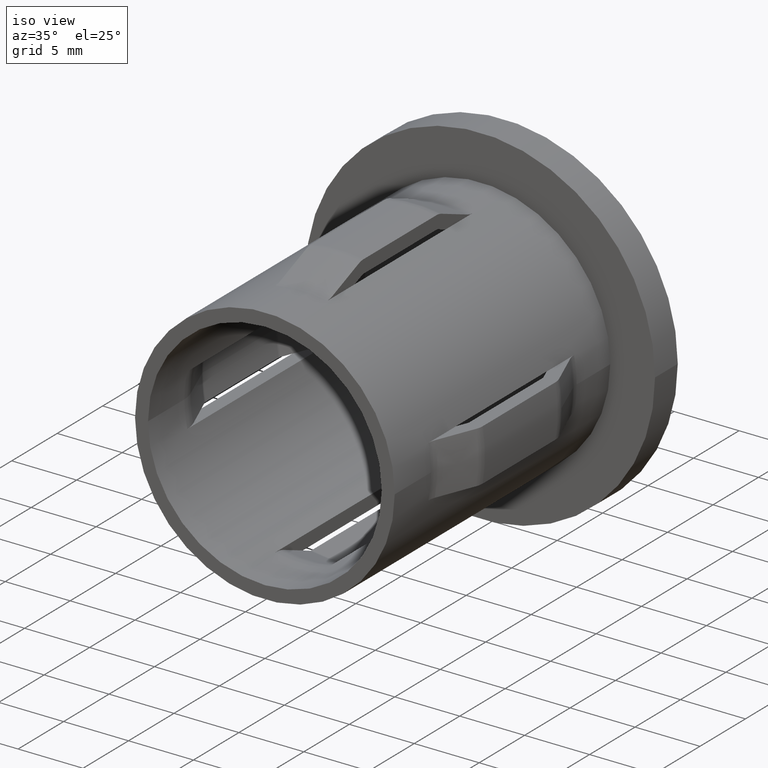
[diagram: clean part render]
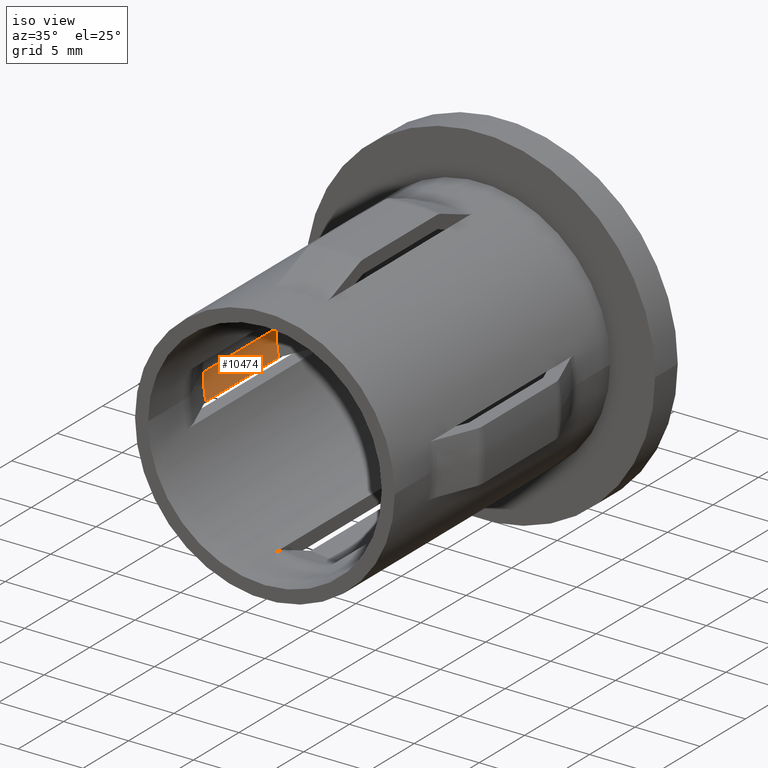
[diagram: same view with one face highlighted and labeled with its STEP entity id]
A machine part, iso view. The second image highlights one B-rep face of the part: STEP entity #10474.
In plain terms, the highlighted cylindrical surface (partial cylindrical patch) has radius 10.35 mm, axis along (0, 1, -0).
Its self-contained STEP definition (entity closure, byte-faithful):
#170 = VECTOR ( 'NONE', #8112, 1000.000000000000000 ) ;
#199 = DIRECTION ( 'NONE',  ( -1.000000000000000000, 0.000000000000000000, 0.000000000000000000 ) ) ;
#720 = CIRCLE ( 'NONE', #8022, 10.35000000000000142 ) ;
#986 = VERTEX_POINT ( 'NONE', #5372 ) ;
#1232 = LINE ( 'NONE', #10228, #170 ) ;
#1606 = LINE ( 'NONE', #1672, #6180 ) ;
#1672 = CARTESIAN_POINT ( 'NONE',  ( -10.15492491355795401, 26.19999999999999929, -2.000000000000000000 ) ) ;
#1683 = DIRECTION ( 'NONE',  ( 7.347880794884120229E-17, 1.000000000000000000, -0.000000000000000000 ) ) ;
#3651 = DIRECTION ( 'NONE',  ( 7.347880794884120229E-17, 1.000000000000000000, -0.000000000000000000 ) ) ;
#3856 = CARTESIAN_POINT ( 'NONE',  ( -9.699202649247035646E-16, 7.999999999999996447, 0.000000000000000000 ) ) ;
#4249 = VERTEX_POINT ( 'NONE', #7676 ) ;
#5085 = DIRECTION ( 'NONE',  ( -1.000000000000000000, 0.000000000000000000, 0.000000000000000000 ) ) ;
#5109 = EDGE_LOOP ( 'NONE', ( #8659, #10378, #9695, #10079 ) ) ;
#5372 = CARTESIAN_POINT ( 'NONE',  ( -10.35000000000000497, 7.999999999999996447, 0.000000000000000000 ) ) ;
#5814 = CARTESIAN_POINT ( 'NONE',  ( -3.820898013339737983E-16, 16.00000000000000000, 0.000000000000000000 ) ) ;
#5843 = FACE_OUTER_BOUND ( 'NONE', #5109, .T. ) ;
#6162 = DIRECTION ( 'NONE',  ( -1.000000000000000000, 0.000000000000000000, 0.000000000000000000 ) ) ;
#6180 = VECTOR ( 'NONE', #11649, 1000.000000000000000 ) ;
#7676 = CARTESIAN_POINT ( 'NONE',  ( -10.35000000000000142, 16.00000000000000000, 0.000000000000000000 ) ) ;
#7773 = CARTESIAN_POINT ( 'NONE',  ( -10.15492491355795579, 7.999999999999996447, -2.000000000000000000 ) ) ;
#8022 = AXIS2_PLACEMENT_3D ( 'NONE', #5814, #3651, #199 ) ;
#8112 = DIRECTION ( 'NONE',  ( 7.347880794884120229E-17, 1.000000000000000000, -0.000000000000000000 ) ) ;
#8411 = CARTESIAN_POINT ( 'NONE',  ( 3.673940397442062826E-16, 26.19999999999999929, 0.000000000000000000 ) ) ;
#8659 = ORIENTED_EDGE ( 'NONE', *, *, #13419, .F. ) ;
#8820 = CYLINDRICAL_SURFACE ( 'NONE', #10777, 10.35000000000000142 ) ;
#9635 = DIRECTION ( 'NONE',  ( 7.347880794884120229E-17, 1.000000000000000000, -0.000000000000000000 ) ) ;
#9695 = ORIENTED_EDGE ( 'NONE', *, *, #12383, .F. ) ;
#10038 = CIRCLE ( 'NONE', #12274, 10.35000000000000320 ) ;
#10079 = ORIENTED_EDGE ( 'NONE', *, *, #13499, .T. ) ;
#10228 = CARTESIAN_POINT ( 'NONE',  ( -10.35000000000000142, 26.19999999999999929, 0.000000000000000000 ) ) ;
#10378 = ORIENTED_EDGE ( 'NONE', *, *, #10749, .F. ) ;
#10474 = ADVANCED_FACE ( 'NONE', ( #5843 ), #8820, .F. ) ;
#10749 = EDGE_CURVE ( 'NONE', #14291, #986, #10038, .T. ) ;
#10777 = AXIS2_PLACEMENT_3D ( 'NONE', #8411, #9635, #6162 ) ;
#11649 = DIRECTION ( 'NONE',  ( -7.347880794884120229E-17, -1.000000000000000000, 0.000000000000000000 ) ) ;
#12039 = CARTESIAN_POINT ( 'NONE',  ( -10.15492491355795224, 16.00000000000000000, -2.000000000000000000 ) ) ;
#12274 = AXIS2_PLACEMENT_3D ( 'NONE', #3856, #1683, #5085 ) ;
#12383 = EDGE_CURVE ( 'NONE', #12533, #14291, #1606, .T. ) ;
#12533 = VERTEX_POINT ( 'NONE', #12039 ) ;
#13419 = EDGE_CURVE ( 'NONE', #986, #4249, #1232, .T. ) ;
#13499 = EDGE_CURVE ( 'NONE', #12533, #4249, #720, .T. ) ;
#14291 = VERTEX_POINT ( 'NONE', #7773 ) ;